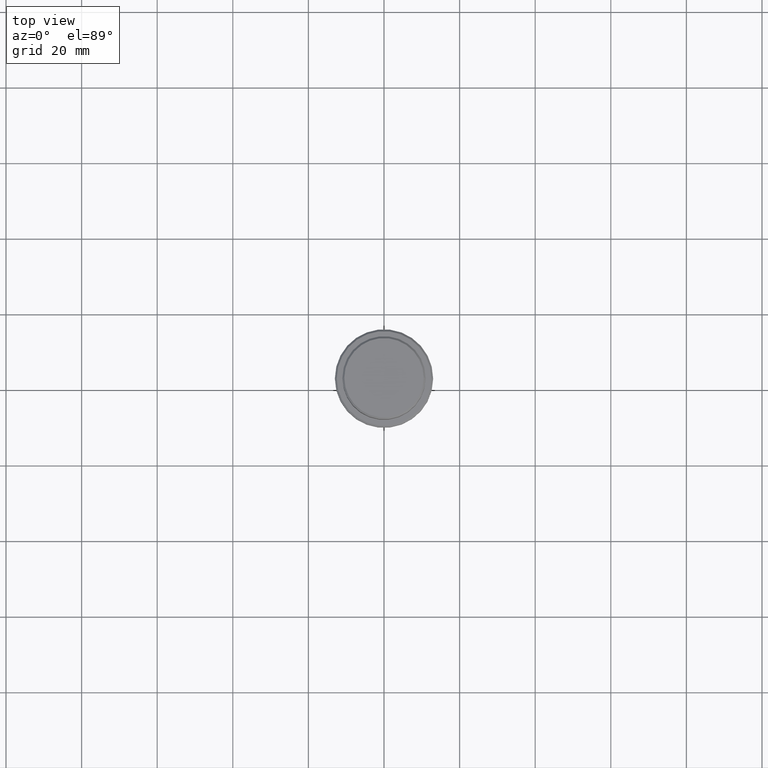
[diagram: clean part render]
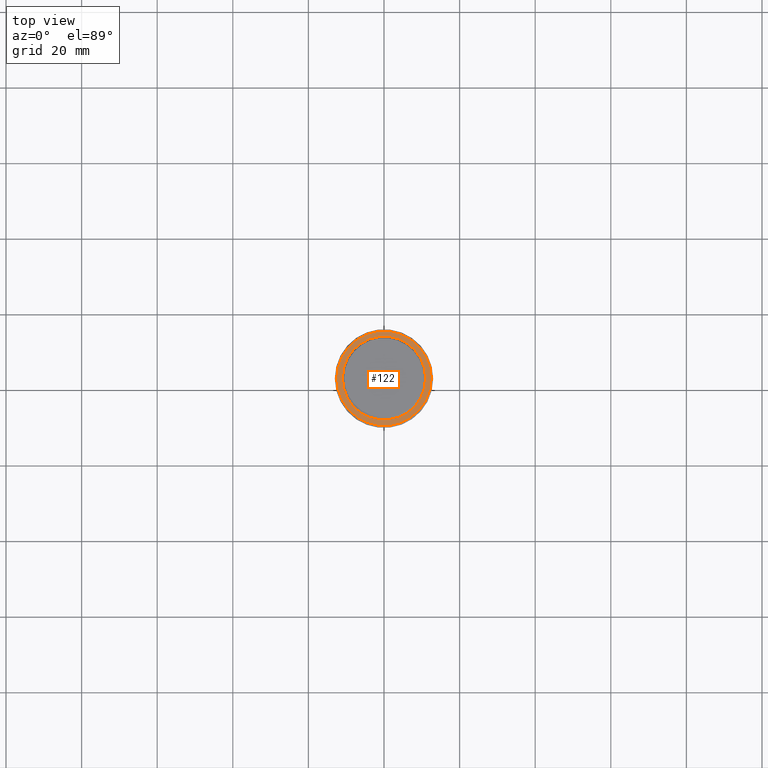
[diagram: same view with one face highlighted and labeled with its STEP entity id]
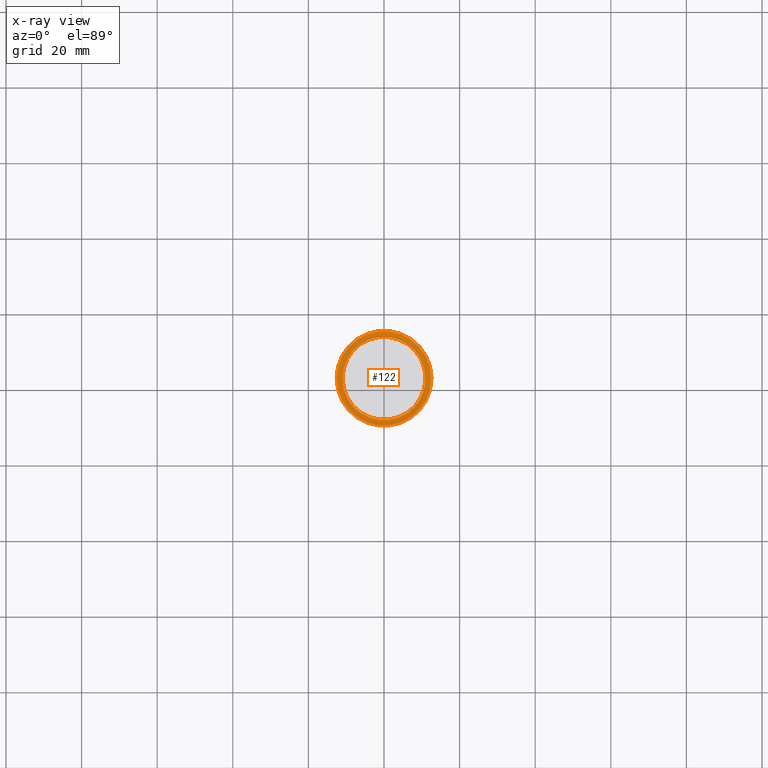
[diagram: x-ray of the same camera — body ghosted, the highlighted face saturated]
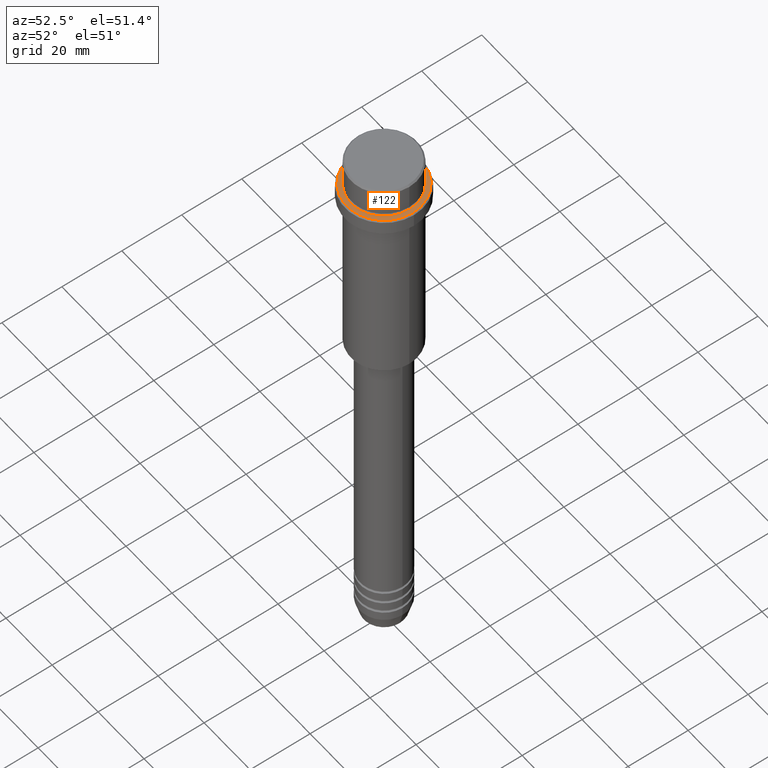
[diagram: same view with one face highlighted and labeled with its STEP entity id]
A machine part, top view. The second image highlights one B-rep face of the part: STEP entity #122.
The next image is the same camera in x-ray: the body ghosted, the highlighted face saturated — about 0% of this face is hidden behind the body in this view.
A second angle (auxiliary view) of the same face is appended — the face is thin or edge-on in the first view.
In plain terms, the highlighted planar face has unit normal (0, -0, 1).
Its self-contained STEP definition (entity closure, byte-faithful):
#2 = CARTESIAN_POINT ( 'NONE',  ( -12.49999999999998401, 0.000000000000000000, -10.00000000000000000 ) ) ;
#91 = PLANE ( 'NONE',  #529 ) ;
#96 = EDGE_CURVE ( 'NONE', #1034, #921, #177, .T. ) ;
#109 = ORIENTED_EDGE ( 'NONE', *, *, #96, .T. ) ;
#114 = CARTESIAN_POINT ( 'NONE',  ( 0.000000000000000000, 0.000000000000000000, -10.00000000000000000 ) ) ;
#119 = EDGE_LOOP ( 'NONE', ( #421, #109 ) ) ;
#122 = ADVANCED_FACE ( 'NONE', ( #723, #826 ), #91, .T. ) ;
#174 = CARTESIAN_POINT ( 'NONE',  ( 0.000000000000000000, 10.49999999999996625, -10.00000000000000000 ) ) ;
#177 = CIRCLE ( 'NONE', #990, 12.49999999999998401 ) ;
#236 = VERTEX_POINT ( 'NONE', #1019 ) ;
#268 = AXIS2_PLACEMENT_3D ( 'NONE', #114, #989, #440 ) ;
#311 = CARTESIAN_POINT ( 'NONE',  ( 0.000000000000000000, 0.000000000000000000, -10.00000000000000000 ) ) ;
#397 = DIRECTION ( 'NONE',  ( 1.000000000000000000, 0.000000000000000000, 0.000000000000000000 ) ) ;
#415 = CIRCLE ( 'NONE', #268, 10.99999999999996625 ) ;
#421 = ORIENTED_EDGE ( 'NONE', *, *, #1017, .T. ) ;
#440 = DIRECTION ( 'NONE',  ( 1.000000000000000000, 0.000000000000000000, 0.000000000000000000 ) ) ;
#441 = AXIS2_PLACEMENT_3D ( 'NONE', #1360, #601, #927 ) ;
#482 = CIRCLE ( 'NONE', #1300, 12.49999999999998401 ) ;
#529 = AXIS2_PLACEMENT_3D ( 'NONE', #174, #531, #397 ) ;
#531 = DIRECTION ( 'NONE',  ( 0.000000000000000000, -0.000000000000000000, 1.000000000000000000 ) ) ;
#538 = CARTESIAN_POINT ( 'NONE',  ( -10.99999999999996625, 1.347111479062084460E-15, -10.00000000000000000 ) ) ;
#549 = VERTEX_POINT ( 'NONE', #538 ) ;
#569 = EDGE_CURVE ( 'NONE', #236, #549, #415, .T. ) ;
#601 = DIRECTION ( 'NONE',  ( 0.000000000000000000, 0.000000000000000000, -1.000000000000000000 ) ) ;
#608 = EDGE_LOOP ( 'NONE', ( #1136, #1416 ) ) ;
#723 = FACE_OUTER_BOUND ( 'NONE', #119, .T. ) ;
#826 = FACE_BOUND ( 'NONE', #608, .T. ) ;
#849 = DIRECTION ( 'NONE',  ( 1.000000000000000000, 0.000000000000000000, 0.000000000000000000 ) ) ;
#921 = VERTEX_POINT ( 'NONE', #2 ) ;
#927 = DIRECTION ( 'NONE',  ( 1.000000000000000000, 0.000000000000000000, 0.000000000000000000 ) ) ;
#980 = CIRCLE ( 'NONE', #441, 10.99999999999996625 ) ;
#989 = DIRECTION ( 'NONE',  ( 0.000000000000000000, 0.000000000000000000, -1.000000000000000000 ) ) ;
#990 = AXIS2_PLACEMENT_3D ( 'NONE', #1271, #1385, #849 ) ;
#1017 = EDGE_CURVE ( 'NONE', #921, #1034, #482, .T. ) ;
#1019 = CARTESIAN_POINT ( 'NONE',  ( 10.99999999999996625, 0.000000000000000000, -10.00000000000000000 ) ) ;
#1034 = VERTEX_POINT ( 'NONE', #1087 ) ;
#1062 = DIRECTION ( 'NONE',  ( -0.000000000000000000, -0.000000000000000000, 1.000000000000000000 ) ) ;
#1087 = CARTESIAN_POINT ( 'NONE',  ( 12.49999999999998401, 1.561424668912874125E-15, -10.00000000000000000 ) ) ;
#1136 = ORIENTED_EDGE ( 'NONE', *, *, #569, .T. ) ;
#1213 = EDGE_CURVE ( 'NONE', #549, #236, #980, .T. ) ;
#1271 = CARTESIAN_POINT ( 'NONE',  ( 0.000000000000000000, 0.000000000000000000, -10.00000000000000000 ) ) ;
#1300 = AXIS2_PLACEMENT_3D ( 'NONE', #311, #1062, #1388 ) ;
#1360 = CARTESIAN_POINT ( 'NONE',  ( 0.000000000000000000, 0.000000000000000000, -10.00000000000000000 ) ) ;
#1385 = DIRECTION ( 'NONE',  ( -0.000000000000000000, -0.000000000000000000, 1.000000000000000000 ) ) ;
#1388 = DIRECTION ( 'NONE',  ( 1.000000000000000000, 0.000000000000000000, 0.000000000000000000 ) ) ;
#1416 = ORIENTED_EDGE ( 'NONE', *, *, #1213, .T. ) ;